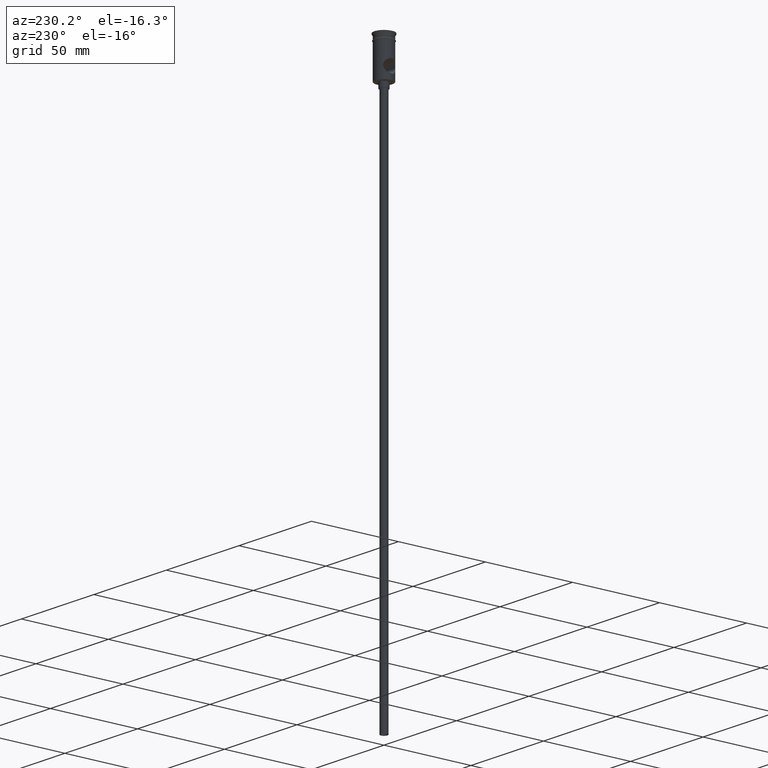
[diagram: clean part render]
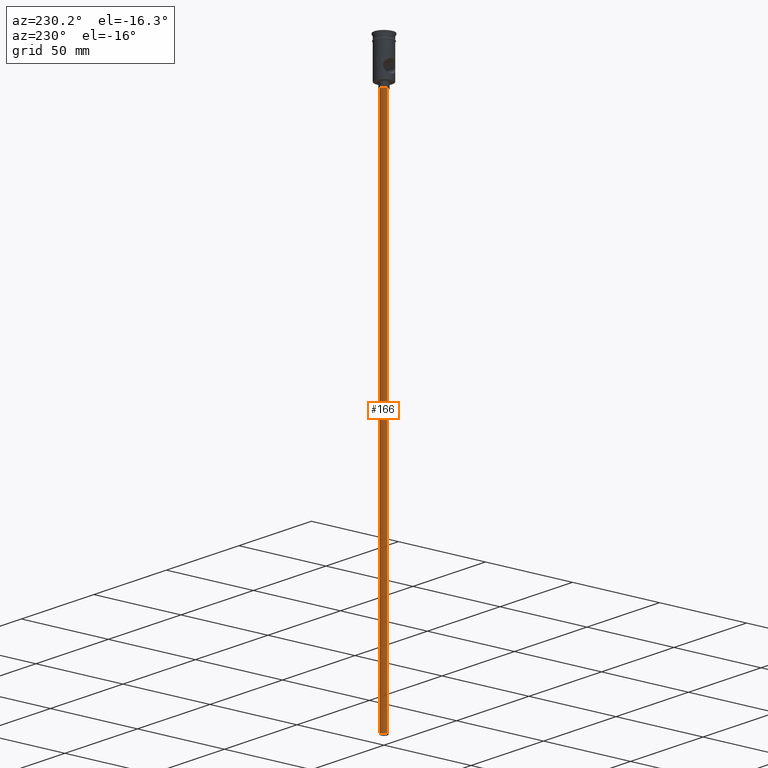
[diagram: same view with one face highlighted and labeled with its STEP entity id]
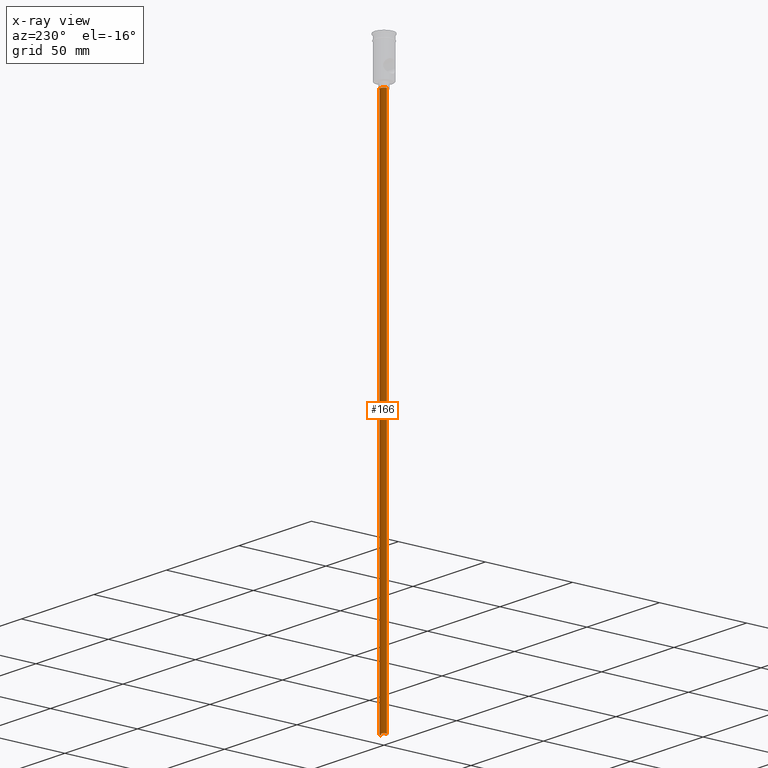
[diagram: x-ray of the same camera — body ghosted, the highlighted face saturated]
A machine part, auxiliary view. The second image highlights one B-rep face of the part: STEP entity #166.
The next image is the same camera in x-ray: the body ghosted, the highlighted face saturated — about 0% of this face is hidden behind the body in this view.
In plain terms, the highlighted cylindrical surface (edge-blend (fillet) strip) has radius 2 mm, axis along (-0, -0, 1).
Its self-contained STEP definition (entity closure, byte-faithful):
#56 = AXIS2_PLACEMENT_3D ( 'NONE', #126, #98, #459 ) ;
#57 = AXIS2_PLACEMENT_3D ( 'NONE', #1277, #943, #738 ) ;
#91 = CARTESIAN_POINT ( 'NONE',  ( 0.000000000000000000, 0.000000000000000000, -322.5000000000000000 ) ) ;
#98 = DIRECTION ( 'NONE',  ( -0.000000000000000000, -0.000000000000000000, 1.000000000000000000 ) ) ;
#126 = CARTESIAN_POINT ( 'NONE',  ( 0.000000000000000000, 0.000000000000000000, -322.5000000000000000 ) ) ;
#127 = VECTOR ( 'NONE', #1132, 1000.000000000000000 ) ;
#166 = ADVANCED_FACE ( 'NONE', ( #850 ), #675, .T. ) ;
#292 = ORIENTED_EDGE ( 'NONE', *, *, #484, .F. ) ;
#377 = CARTESIAN_POINT ( 'NONE',  ( -2.000000000000000000, 2.449293598294706414E-16, -322.5000000000000000 ) ) ;
#386 = VERTEX_POINT ( 'NONE', #1113 ) ;
#412 = ORIENTED_EDGE ( 'NONE', *, *, #712, .T. ) ;
#425 = CARTESIAN_POINT ( 'NONE',  ( -2.000000000000000000, 2.449293598294706414E-16, -25.50000000000000000 ) ) ;
#443 = DIRECTION ( 'NONE',  ( 0.000000000000000000, 0.000000000000000000, -1.000000000000000000 ) ) ;
#459 = DIRECTION ( 'NONE',  ( 1.000000000000000000, 0.000000000000000000, 0.000000000000000000 ) ) ;
#464 = EDGE_CURVE ( 'NONE', #771, #1431, #976, .T. ) ;
#484 = EDGE_CURVE ( 'NONE', #1431, #386, #821, .T. ) ;
#575 = ORIENTED_EDGE ( 'NONE', *, *, #464, .F. ) ;
#645 = CARTESIAN_POINT ( 'NONE',  ( 2.000000000000000000, 0.000000000000000000, -322.5000000000000000 ) ) ;
#675 = CYLINDRICAL_SURFACE ( 'NONE', #56, 2.000000000000000000 ) ;
#680 = CIRCLE ( 'NONE', #57, 2.000000000000000000 ) ;
#712 = EDGE_CURVE ( 'NONE', #1440, #386, #680, .T. ) ;
#723 = AXIS2_PLACEMENT_3D ( 'NONE', #91, #443, #1156 ) ;
#738 = DIRECTION ( 'NONE',  ( -1.000000000000000000, 0.000000000000000000, 0.000000000000000000 ) ) ;
#771 = VERTEX_POINT ( 'NONE', #377 ) ;
#778 = DIRECTION ( 'NONE',  ( -0.000000000000000000, -0.000000000000000000, 1.000000000000000000 ) ) ;
#821 = LINE ( 'NONE', #1266, #127 ) ;
#850 = FACE_OUTER_BOUND ( 'NONE', #1351, .T. ) ;
#943 = DIRECTION ( 'NONE',  ( 0.000000000000000000, 0.000000000000000000, -1.000000000000000000 ) ) ;
#976 = CIRCLE ( 'NONE', #723, 2.000000000000000000 ) ;
#1101 = VECTOR ( 'NONE', #778, 1000.000000000000000 ) ;
#1113 = CARTESIAN_POINT ( 'NONE',  ( 2.000000000000000000, 0.000000000000000000, -25.50000000000000000 ) ) ;
#1132 = DIRECTION ( 'NONE',  ( -0.000000000000000000, -0.000000000000000000, 1.000000000000000000 ) ) ;
#1156 = DIRECTION ( 'NONE',  ( -1.000000000000000000, 0.000000000000000000, 0.000000000000000000 ) ) ;
#1266 = CARTESIAN_POINT ( 'NONE',  ( 2.000000000000000000, 0.000000000000000000, -322.5000000000000000 ) ) ;
#1277 = CARTESIAN_POINT ( 'NONE',  ( 0.000000000000000000, 0.000000000000000000, -25.50000000000000000 ) ) ;
#1310 = ORIENTED_EDGE ( 'NONE', *, *, #1315, .T. ) ;
#1315 = EDGE_CURVE ( 'NONE', #771, #1440, #1338, .T. ) ;
#1338 = LINE ( 'NONE', #1434, #1101 ) ;
#1351 = EDGE_LOOP ( 'NONE', ( #575, #1310, #412, #292 ) ) ;
#1431 = VERTEX_POINT ( 'NONE', #645 ) ;
#1434 = CARTESIAN_POINT ( 'NONE',  ( -2.000000000000000000, 2.449293598294706414E-16, -322.5000000000000000 ) ) ;
#1440 = VERTEX_POINT ( 'NONE', #425 ) ;